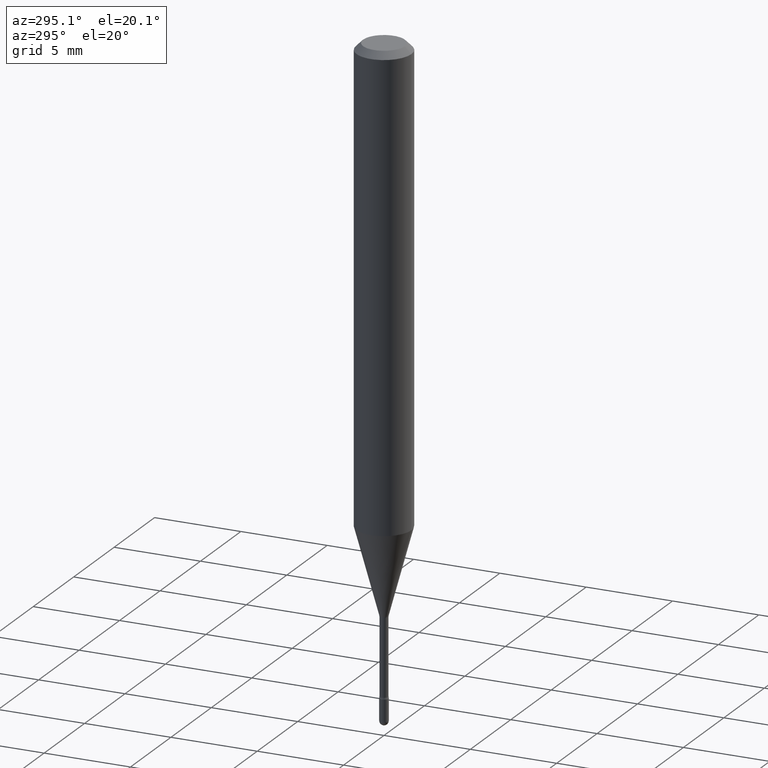
[diagram: clean part render]
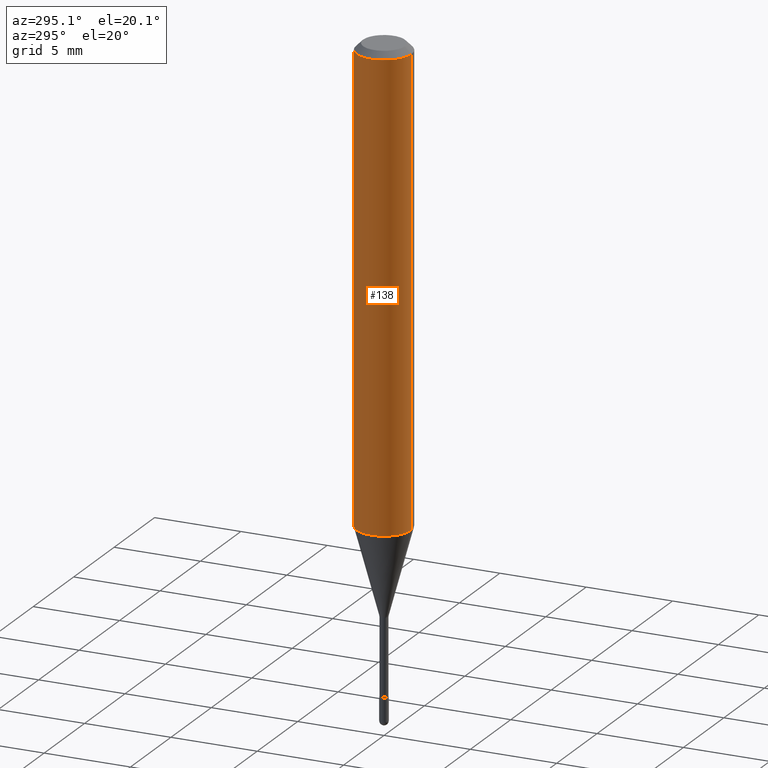
[diagram: same view with one face highlighted and labeled with its STEP entity id]
A machine part, auxiliary view. The second image highlights one B-rep face of the part: STEP entity #138.
In plain terms, the highlighted cylindrical surface (edge-blend (fillet) strip) has radius 1.5875 mm, axis along (-0, 0, 1).
Its self-contained STEP definition (entity closure, byte-faithful):
#11 = CARTESIAN_POINT ( 'NONE',  ( 3.668377002624788976E-31, -5.236973126300048325E-17, -0.01500000000000008271 ) ) ;
#17 = CARTESIAN_POINT ( 'NONE',  ( -1.169113584055446105E-44, 1.669184350826100908E-30, 4.780733988912460139E-16 ) ) ;
#29 = CARTESIAN_POINT ( 'NONE',  ( 4.440892098500884514E-16, 0.06249999999999629463, -1.061828102118093309 ) ) ;
#33 = DIRECTION ( 'NONE',  ( -2.445584668416512625E-29, 3.491315417533346075E-15, 1.000000000000000000 ) ) ;
#52 = ORIENTED_EDGE ( 'NONE', *, *, #132, .T. ) ;
#73 = DIRECTION ( 'NONE',  ( -6.982962677686265922E-15, -1.000000000000000000, 3.491315417533345680E-15 ) ) ;
#84 = VERTEX_POINT ( 'NONE', #202 ) ;
#91 = VECTOR ( 'NONE', #159, 39.37007874015748143 ) ;
#108 = EDGE_CURVE ( 'NONE', #418, #310, #243, .T. ) ;
#118 = DIRECTION ( 'NONE',  ( -2.445584668416512625E-29, 3.491315417533346075E-15, 1.000000000000000000 ) ) ;
#123 = LINE ( 'NONE', #375, #452 ) ;
#126 = ORIENTED_EDGE ( 'NONE', *, *, #108, .F. ) ;
#132 = EDGE_CURVE ( 'NONE', #84, #310, #140, .T. ) ;
#135 = AXIS2_PLACEMENT_3D ( 'NONE', #295, #196, #334 ) ;
#138 = ADVANCED_FACE ( 'NONE', ( #152 ), #455, .T. ) ;
#140 = LINE ( 'NONE', #338, #91 ) ;
#142 = AXIS2_PLACEMENT_3D ( 'NONE', #17, #403, #73 ) ;
#146 = VERTEX_POINT ( 'NONE', #29 ) ;
#152 = FACE_OUTER_BOUND ( 'NONE', #335, .T. ) ;
#159 = DIRECTION ( 'NONE',  ( -2.445584668416512625E-29, 3.491315417533346075E-15, 1.000000000000000000 ) ) ;
#196 = DIRECTION ( 'NONE',  ( -2.445584668416512625E-29, 3.491315417533346075E-15, 1.000000000000000000 ) ) ;
#202 = CARTESIAN_POINT ( 'NONE',  ( -4.364351673553657356E-16, -0.06250000000000371925, -1.061828102118092865 ) ) ;
#243 = CIRCLE ( 'NONE', #469, 0.06250000000000000000 ) ;
#287 = ORIENTED_EDGE ( 'NONE', *, *, #552, .T. ) ;
#289 = CIRCLE ( 'NONE', #135, 0.06250000000000000000 ) ;
#295 = CARTESIAN_POINT ( 'NONE',  ( 2.596790527033811359E-29, -3.707176823695070434E-15, -1.061828102118093087 ) ) ;
#310 = VERTEX_POINT ( 'NONE', #353 ) ;
#313 = CARTESIAN_POINT ( 'NONE',  ( 4.440892098500887472E-16, 0.06249999999999995837, -0.01500000000000030129 ) ) ;
#334 = DIRECTION ( 'NONE',  ( -6.982962677686265922E-15, -1.000000000000000000, 4.370956789862821150E-15 ) ) ;
#335 = EDGE_LOOP ( 'NONE', ( #343, #287, #52, #126 ) ) ;
#338 = CARTESIAN_POINT ( 'NONE',  ( -4.364351673553916201E-16, -0.06250000000000000000, 6.962806124870801683E-16 ) ) ;
#343 = ORIENTED_EDGE ( 'NONE', *, *, #519, .F. ) ;
#353 = CARTESIAN_POINT ( 'NONE',  ( -4.364351673553912750E-16, -0.06250000000000005551, -0.01499999999999986587 ) ) ;
#375 = CARTESIAN_POINT ( 'NONE',  ( 4.440892098500625669E-16, 0.06250000000000000000, 2.598661852954119582E-16 ) ) ;
#403 = DIRECTION ( 'NONE',  ( -2.445584668416512625E-29, 3.491315417533346075E-15, 1.000000000000000000 ) ) ;
#418 = VERTEX_POINT ( 'NONE', #313 ) ;
#452 = VECTOR ( 'NONE', #33, 39.37007874015748143 ) ;
#455 = CYLINDRICAL_SURFACE ( 'NONE', #142, 0.06250000000000000000 ) ;
#463 = DIRECTION ( 'NONE',  ( -6.982962677686265922E-15, -1.000000000000000000, 3.483106191921935554E-15 ) ) ;
#469 = AXIS2_PLACEMENT_3D ( 'NONE', #11, #118, #463 ) ;
#519 = EDGE_CURVE ( 'NONE', #146, #418, #123, .T. ) ;
#552 = EDGE_CURVE ( 'NONE', #146, #84, #289, .T. ) ;